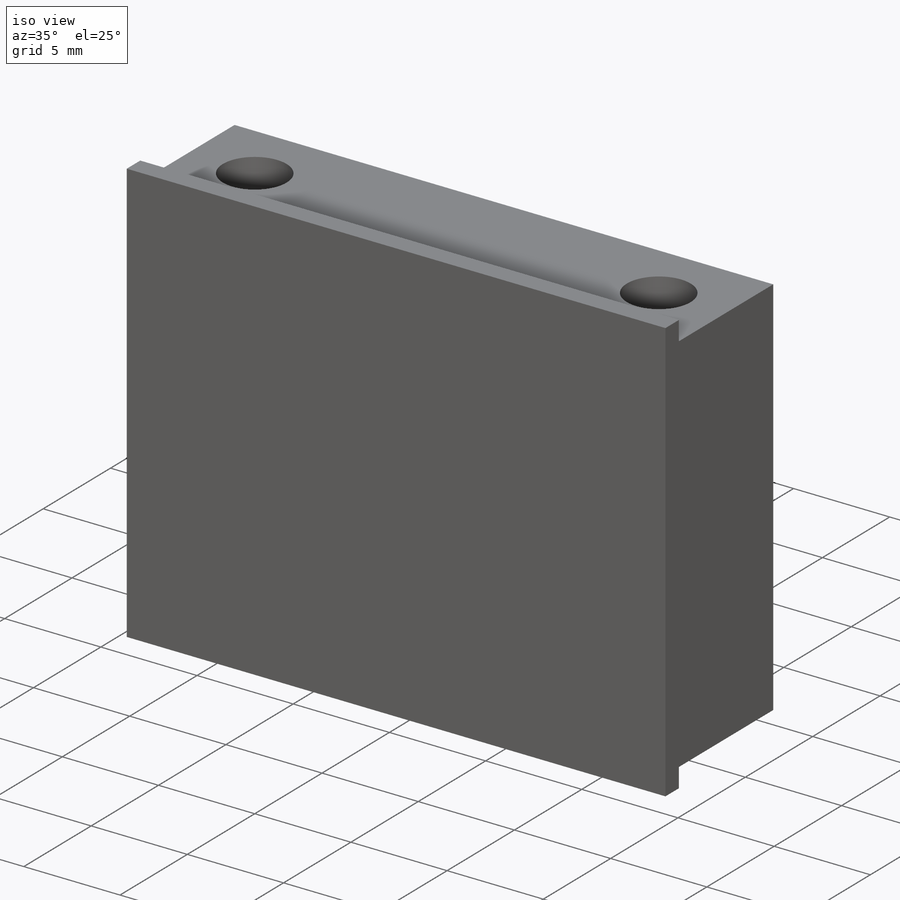
[diagram: iso view]
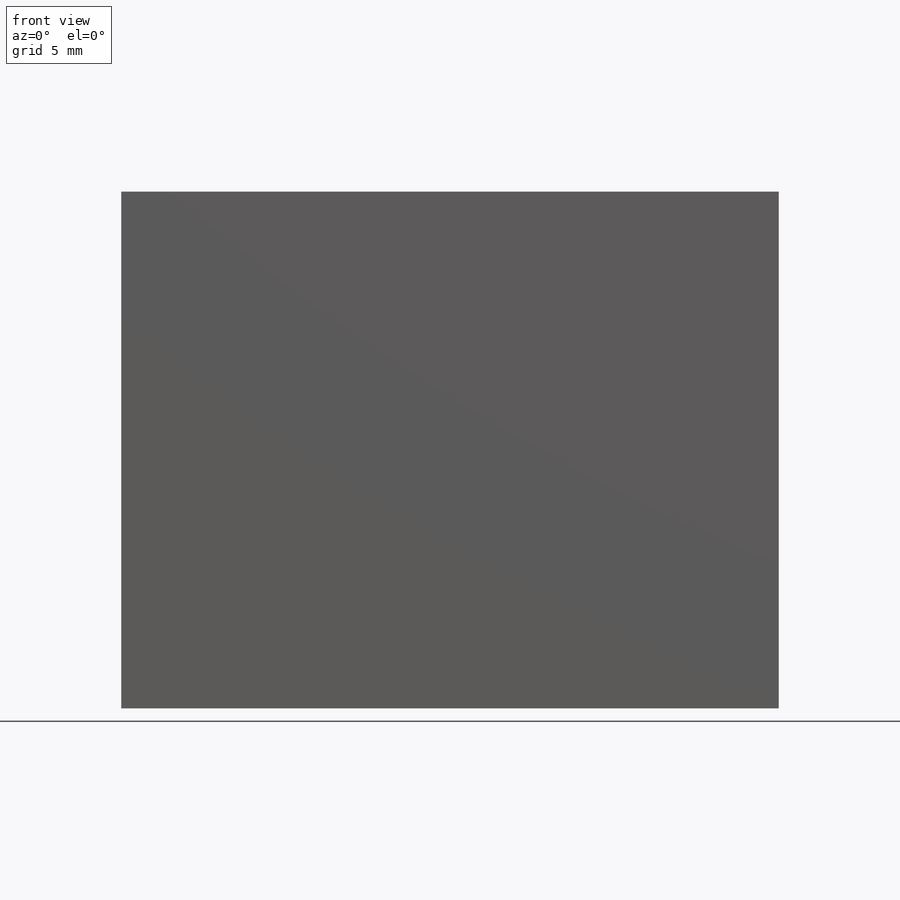
[diagram: front view]
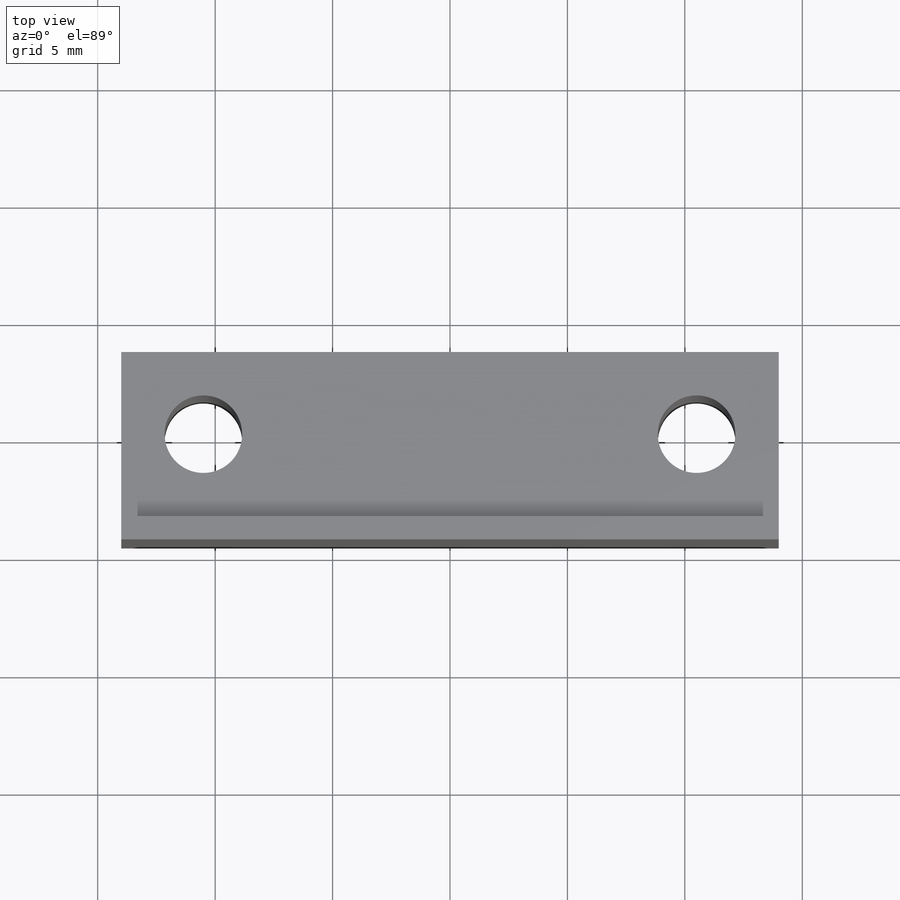
[diagram: top view]
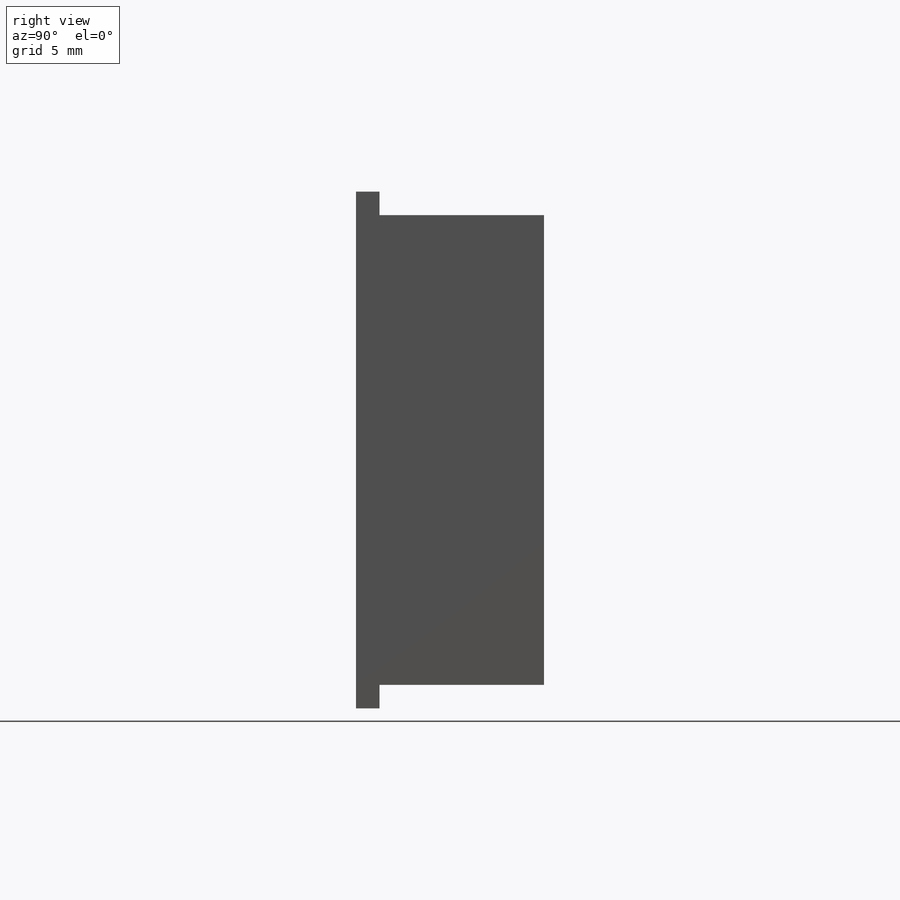
[diagram: right view]
SOLIDWORKS PART (.sldprt)
format: sldprt  version: not decoded by parser v0  size: 573,440 bytes
history: native  units: mm
features: sketch x6, extrude x2, thread x2, cut_extrude x2, material x1, mirror x1, hole x1 (+11 scaffold rows collapsed)
feature tree (26):
  scaffold x11  (default folders/planes/origin — collapsed)
  material  "Polyimide"
  sketch  "Sketch5"  dims[c1.D3=~36.055513mm c1.D1=28.0mm c1.D2=19.5mm c2.D3=~60.902474mm]
  extrude  "Boss-Extrude2"  Depth=4.5mm
  sketch  "Sketch9"  dims[D1=3.5mm]
  extrude  "Boss-Extrude3"  Depth=1mm
  mirror  "Mirror2"
  hole  "M4x0.7 Tapped Hole2"  Diameter=3.3mm Depth=20.500025mm
  sketch  "Sketch15"  dims[D1=21.0mm]
  sketch  "Sketch14"  dims[hole-wizard template sketch: 60 standard entries collapsed; hole parameters kept: c18.Thru Tap Drill Depth=~20.500025mm]
  thread  "Hole Thread5"  Diameter=4mm  [1 undecoded]
  thread  "Hole Thread6"  Diameter=4mm  [1 undecoded]
  sketch  "Sketch17"
  cut_extrude  "Cut-Extrude2"  Depth=0.5mm
  sketch  "Sketch18"
  cut_extrude  "Cut-Extrude3"  Depth=0.5mm
decode coverage: 11 of 14 modeling features carry decoded parameters
note: ~ marks probable driven/reference dimensions
note: 2 parameter values undecoded
note: suppression state not decoded; provenance and decode notes live in map.json
